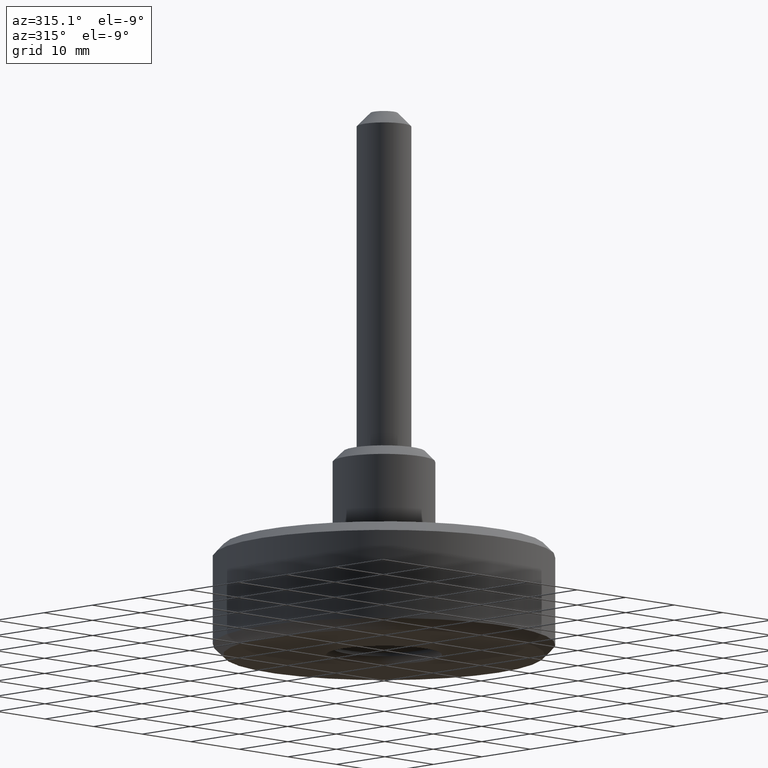
[diagram: clean part render]
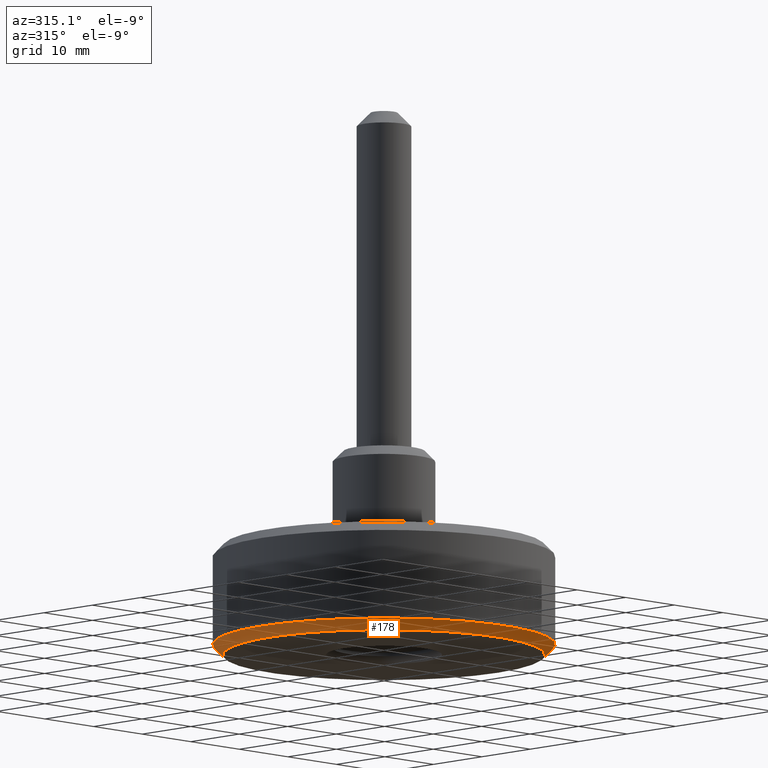
[diagram: same view with one face highlighted and labeled with its STEP entity id]
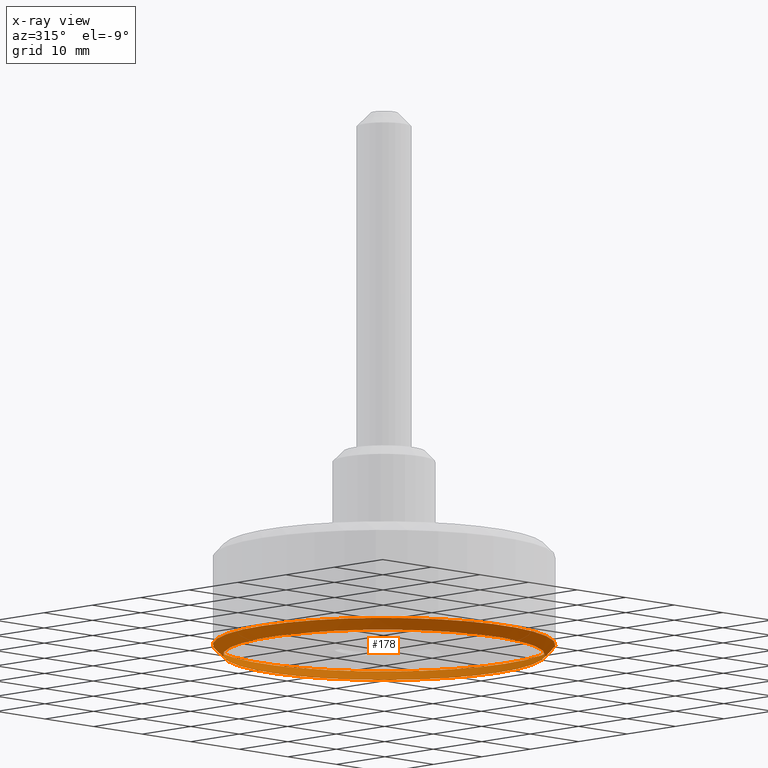
[diagram: x-ray of the same camera — body ghosted, the highlighted face saturated]
A machine part, auxiliary view. The second image highlights one B-rep face of the part: STEP entity #178.
The next image is the same camera in x-ray: the body ghosted, the highlighted face saturated — about 0% of this face is hidden behind the body in this view.
In plain terms, the highlighted conical surface has half-angle 45 deg.
Its self-contained STEP definition (entity closure, byte-faithful):
#36=FACE_BOUND('',#79,.T.);
#52=FACE_OUTER_BOUND('',#78,.T.);
#78=EDGE_LOOP('',(#153));
#79=EDGE_LOOP('',(#154));
#89=CIRCLE('',#190,23.5);
#98=CIRCLE('',#209,25.);
#104=VERTEX_POINT('',#289);
#113=VERTEX_POINT('',#317);
#119=EDGE_CURVE('',#104,#104,#89,.T.);
#128=EDGE_CURVE('',#113,#113,#98,.T.);
#153=ORIENTED_EDGE('',*,*,#128,.T.);
#154=ORIENTED_EDGE('',*,*,#119,.T.);
#164=CONICAL_SURFACE('',#208,24.25,45.);
#178=ADVANCED_FACE('',(#52,#36),#164,.T.);
#190=AXIS2_PLACEMENT_3D('',#290,#229,#230);
#208=AXIS2_PLACEMENT_3D('',#316,#265,#266);
#209=AXIS2_PLACEMENT_3D('',#318,#267,#268);
#229=DIRECTION('center_axis',(0.,0.,1.));
#230=DIRECTION('ref_axis',(-1.,0.,0.));
#265=DIRECTION('center_axis',(0.,0.,1.));
#266=DIRECTION('ref_axis',(-1.,0.,0.));
#267=DIRECTION('center_axis',(0.,0.,-1.));
#268=DIRECTION('ref_axis',(-1.,0.,0.));
#289=CARTESIAN_POINT('',(23.5,2.87791997799628E-15,0.));
#290=CARTESIAN_POINT('Origin',(0.,0.,0.));
#316=CARTESIAN_POINT('Origin',(0.,0.,0.75));
#317=CARTESIAN_POINT('',(25.,-3.06161699786838E-15,1.5));
#318=CARTESIAN_POINT('Origin',(0.,0.,1.5));